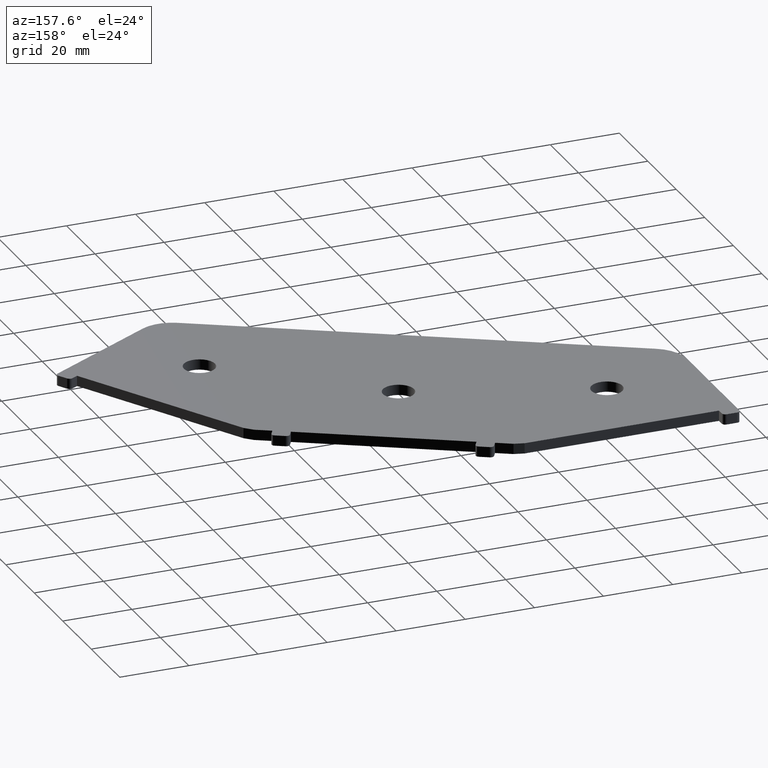
[diagram: clean part render]
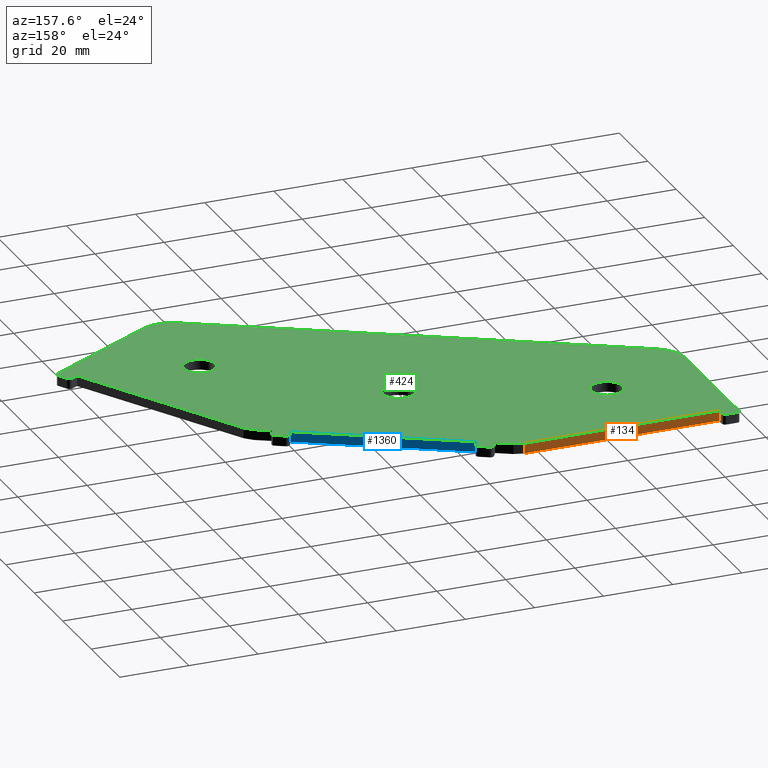
[diagram: same view with three faces highlighted in distinct colors, each labeled with its STEP entity id]
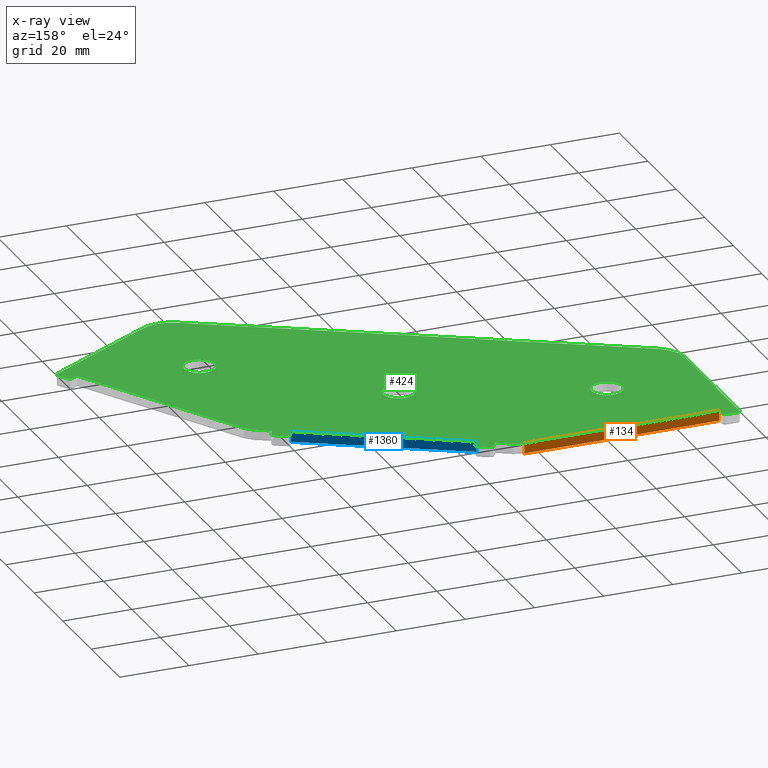
[diagram: x-ray of the same camera — body ghosted, the three highlighted faces saturated]
A machine part, auxiliary view with three faces highlighted in distinct colors.
The next image is the same camera in x-ray (body ghosted, the three faces saturated) — at least one of them is partly hidden behind the body in this view.
Their STEP definitions:

[orange] entity #134 — the highlighted planar face has unit normal (0, 1, -0).
#10 = LINE ( 'NONE', #332, #412 ) ;
#87 = EDGE_CURVE ( 'NONE', #1428, #1356, #1435, .T. ) ;
#91 = DIRECTION ( 'NONE',  ( -1.000000000000000000, 0.000000000000000000, 0.000000000000000000 ) ) ;
#103 = CARTESIAN_POINT ( 'NONE',  ( 586.2509217650526807, 1091.305264068951146, 1257.499999999999545 ) ) ;
#113 = DIRECTION ( 'NONE',  ( -1.000000000000000000, -0.000000000000000000, 0.000000000000000000 ) ) ;
#134 = ADVANCED_FACE ( 'NONE', ( #649 ), #551, .T. ) ;
#156 = EDGE_CURVE ( 'NONE', #1356, #811, #10, .T. ) ;
#278 = CARTESIAN_POINT ( 'NONE',  ( 586.2509217650526807, 1091.305264068951146, 1257.499999999999545 ) ) ;
#332 = CARTESIAN_POINT ( 'NONE',  ( 530.0000000000000000, 1091.305264068951146, 1257.499999999999545 ) ) ;
#336 = CARTESIAN_POINT ( 'NONE',  ( 586.2509217650526807, 1091.305264068951146, 1260.499999999999545 ) ) ;
#375 = CARTESIAN_POINT ( 'NONE',  ( 530.0000000000000000, 1091.305264068951146, 1260.499999999999545 ) ) ;
#412 = VECTOR ( 'NONE', #763, 1000.000000000000000 ) ;
#452 = CARTESIAN_POINT ( 'NONE',  ( 586.2509217650526807, 1091.305264068951146, 1257.499999999999545 ) ) ;
#505 = VECTOR ( 'NONE', #91, 1000.000000000000000 ) ;
#533 = EDGE_CURVE ( 'NONE', #1428, #809, #1342, .T. ) ;
#540 = CARTESIAN_POINT ( 'NONE',  ( 0.000000000000000000, 1091.305264068951146, 1260.499999999999545 ) ) ;
#551 = PLANE ( 'NONE',  #951 ) ;
#570 = VECTOR ( 'NONE', #765, 1000.000000000000000 ) ;
#649 = FACE_OUTER_BOUND ( 'NONE', #667, .T. ) ;
#667 = EDGE_LOOP ( 'NONE', ( #1128, #1287, #949, #784 ) ) ;
#735 = LINE ( 'NONE', #103, #505 ) ;
#755 = DIRECTION ( 'NONE',  ( 0.000000000000000000, 1.000000000000000000, -0.000000000000000000 ) ) ;
#763 = DIRECTION ( 'NONE',  ( -0.000000000000000000, -0.000000000000000000, -1.000000000000000000 ) ) ;
#765 = DIRECTION ( 'NONE',  ( -0.000000000000000000, -0.000000000000000000, -1.000000000000000000 ) ) ;
#777 = DIRECTION ( 'NONE',  ( -1.000000000000000000, 0.000000000000000000, 0.000000000000000000 ) ) ;
#784 = ORIENTED_EDGE ( 'NONE', *, *, #952, .T. ) ;
#809 = VERTEX_POINT ( 'NONE', #278 ) ;
#811 = VERTEX_POINT ( 'NONE', #1397 ) ;
#949 = ORIENTED_EDGE ( 'NONE', *, *, #533, .T. ) ;
#951 = AXIS2_PLACEMENT_3D ( 'NONE', #452, #755, #777 ) ;
#952 = EDGE_CURVE ( 'NONE', #809, #811, #735, .T. ) ;
#1010 = CARTESIAN_POINT ( 'NONE',  ( 586.2509217650526807, 1091.305264068951146, 1257.499999999999545 ) ) ;
#1128 = ORIENTED_EDGE ( 'NONE', *, *, #156, .F. ) ;
#1287 = ORIENTED_EDGE ( 'NONE', *, *, #87, .F. ) ;
#1292 = VECTOR ( 'NONE', #113, 1000.000000000000000 ) ;
#1342 = LINE ( 'NONE', #1010, #570 ) ;
#1356 = VERTEX_POINT ( 'NONE', #375 ) ;
#1397 = CARTESIAN_POINT ( 'NONE',  ( 530.0000000000000000, 1091.305264068951146, 1257.499999999999545 ) ) ;
#1428 = VERTEX_POINT ( 'NONE', #336 ) ;
#1435 = LINE ( 'NONE', #540, #1292 ) ;

[blue] entity #1360 — the highlighted planar face has unit normal (0.5, 0.866, -0).
#28 = ORIENTED_EDGE ( 'NONE', *, *, #337, .F. ) ;
#30 = DIRECTION ( 'NONE',  ( -0.000000000000000000, -0.000000000000000000, -1.000000000000000000 ) ) ;
#64 = VECTOR ( 'NONE', #664, 1000.000000000000000 ) ;
#146 = EDGE_CURVE ( 'NONE', #786, #277, #325, .T. ) ;
#150 = EDGE_LOOP ( 'NONE', ( #28, #989, #995, #364 ) ) ;
#152 = LINE ( 'NONE', #1245, #1068 ) ;
#193 = PLANE ( 'NONE',  #710 ) ;
#202 = DIRECTION ( 'NONE',  ( 0.5000000000000001110, 0.8660254037844385966, -0.000000000000000000 ) ) ;
#267 = CARTESIAN_POINT ( 'NONE',  ( 641.1910459962641653, 1060.482144026918149, 1257.499999999999545 ) ) ;
#277 = VERTEX_POINT ( 'NONE', #1083 ) ;
#287 = EDGE_CURVE ( 'NONE', #796, #530, #985, .T. ) ;
#306 = FACE_OUTER_BOUND ( 'NONE', #150, .T. ) ;
#325 = LINE ( 'NONE', #1201, #1246 ) ;
#329 = EDGE_CURVE ( 'NONE', #786, #796, #1142, .T. ) ;
#337 = EDGE_CURVE ( 'NONE', #277, #530, #152, .T. ) ;
#364 = ORIENTED_EDGE ( 'NONE', *, *, #287, .T. ) ;
#530 = VERTEX_POINT ( 'NONE', #566 ) ;
#566 = CARTESIAN_POINT ( 'NONE',  ( 597.8089532817642748, 1085.528806933643637, 1257.499999999999545 ) ) ;
#664 = DIRECTION ( 'NONE',  ( -0.8660254037844385966, 0.5000000000000001110, 0.000000000000000000 ) ) ;
#710 = AXIS2_PLACEMENT_3D ( 'NONE', #803, #202, #1205 ) ;
#786 = VERTEX_POINT ( 'NONE', #1387 ) ;
#796 = VERTEX_POINT ( 'NONE', #1392 ) ;
#803 = CARTESIAN_POINT ( 'NONE',  ( 649.8513000341085899, 1055.482144026917695, 1257.499999999999545 ) ) ;
#883 = CARTESIAN_POINT ( 'NONE',  ( 649.8513000341085899, 1055.482144026917695, 1257.499999999999545 ) ) ;
#904 = DIRECTION ( 'NONE',  ( -0.000000000000000000, -0.000000000000000000, -1.000000000000000000 ) ) ;
#967 = DIRECTION ( 'NONE',  ( -0.8660254037844385966, 0.5000000000000001110, 0.000000000000000000 ) ) ;
#985 = LINE ( 'NONE', #883, #64 ) ;
#989 = ORIENTED_EDGE ( 'NONE', *, *, #146, .F. ) ;
#995 = ORIENTED_EDGE ( 'NONE', *, *, #329, .T. ) ;
#1068 = VECTOR ( 'NONE', #904, 1000.000000000000000 ) ;
#1083 = CARTESIAN_POINT ( 'NONE',  ( 597.8089532817642748, 1085.528806933643637, 1260.499999999999545 ) ) ;
#1142 = LINE ( 'NONE', #267, #1145 ) ;
#1145 = VECTOR ( 'NONE', #30, 1000.000000000000000 ) ;
#1201 = CARTESIAN_POINT ( 'NONE',  ( 649.8513000341085899, 1055.482144026917695, 1260.499999999999545 ) ) ;
#1205 = DIRECTION ( 'NONE',  ( -0.8660254037844385966, 0.5000000000000001110, 0.000000000000000000 ) ) ;
#1245 = CARTESIAN_POINT ( 'NONE',  ( 597.8089532817642748, 1085.528806933643637, 1257.499999999999545 ) ) ;
#1246 = VECTOR ( 'NONE', #967, 1000.000000000000000 ) ;
#1360 = ADVANCED_FACE ( 'NONE', ( #306 ), #193, .T. ) ;
#1387 = CARTESIAN_POINT ( 'NONE',  ( 641.1910459962641653, 1060.482144026918149, 1260.499999999999545 ) ) ;
#1392 = CARTESIAN_POINT ( 'NONE',  ( 641.1910459962641653, 1060.482144026918149, 1257.499999999999545 ) ) ;

[green] entity #424 — the highlighted planar face has unit normal (0, 0, 1).
#2 = LINE ( 'NONE', #1209, #541 ) ;
#4 = DIRECTION ( 'NONE',  ( 1.000000000000000000, 0.000000000000000000, 0.000000000000000000 ) ) ;
#11 = ORIENTED_EDGE ( 'NONE', *, *, #751, .T. ) ;
#12 = DIRECTION ( 'NONE',  ( 1.000000000000000000, 0.000000000000000000, 0.000000000000000000 ) ) ;
#13 = ORIENTED_EDGE ( 'NONE', *, *, #1149, .F. ) ;
#16 = CARTESIAN_POINT ( 'NONE',  ( 529.0000000000000000, 1094.305264068950919, 1260.499999999999545 ) ) ;
#18 = ORIENTED_EDGE ( 'NONE', *, *, #807, .F. ) ;
#20 = DIRECTION ( 'NONE',  ( -1.000000000000000000, 0.000000000000000000, 0.000000000000000000 ) ) ;
#21 = VERTEX_POINT ( 'NONE', #560 ) ;
#32 = LINE ( 'NONE', #1024, #1391 ) ;
#33 = VERTEX_POINT ( 'NONE', #241 ) ;
#34 = ORIENTED_EDGE ( 'NONE', *, *, #459, .T. ) ;
#40 = DIRECTION ( 'NONE',  ( 0.000000000000000000, -1.000000000000000000, -0.000000000000000000 ) ) ;
#41 = AXIS2_PLACEMENT_3D ( 'NONE', #757, #994, #12 ) ;
#45 = VERTEX_POINT ( 'NONE', #567 ) ;
#47 = EDGE_CURVE ( 'NONE', #1335, #695, #368, .T. ) ;
#51 = ORIENTED_EDGE ( 'NONE', *, *, #1311, .F. ) ;
#53 = ORIENTED_EDGE ( 'NONE', *, *, #87, .T. ) ;
#61 = CARTESIAN_POINT ( 'NONE',  ( 594.4788262628419488, 1089.760857741212249, 1260.499999999999545 ) ) ;
#62 = VERTEX_POINT ( 'NONE', #908 ) ;
#72 = EDGE_CURVE ( 'NONE', #438, #1109, #343, .T. ) ;
#82 = CIRCLE ( 'NONE', #1314, 1.000000000000000888 ) ;
#87 = EDGE_CURVE ( 'NONE', #1428, #1356, #1435, .T. ) ;
#93 = DIRECTION ( 'NONE',  ( -0.5000000000000001110, -0.8660254037844384856, 0.000000000000000000 ) ) ;
#96 = EDGE_CURVE ( 'NONE', #171, #494, #370, .T. ) ;
#100 = FACE_BOUND ( 'NONE', #1004, .T. ) ;
#102 = EDGE_CURVE ( 'NONE', #1109, #151, #1220, .T. ) ;
#105 = EDGE_CURVE ( 'NONE', #522, #33, #870, .T. ) ;
#106 = CARTESIAN_POINT ( 'NONE',  ( 642.8858955936145776, 1011.305264102386786, 1260.499999999999545 ) ) ;
#107 = DIRECTION ( 'NONE',  ( -0.000000000000000000, -0.000000000000000000, -1.000000000000000000 ) ) ;
#109 = CIRCLE ( 'NONE', #110, 1.000000000000000888 ) ;
#110 = AXIS2_PLACEMENT_3D ( 'NONE', #509, #1046, #1163 ) ;
#112 = CARTESIAN_POINT ( 'NONE',  ( 595.8448516666264823, 1090.126883144996782, 1260.499999999999545 ) ) ;
#113 = DIRECTION ( 'NONE',  ( -1.000000000000000000, -0.000000000000000000, 0.000000000000000000 ) ) ;
#114 = ORIENTED_EDGE ( 'NONE', *, *, #1275, .T. ) ;
#119 = CARTESIAN_POINT ( 'NONE',  ( 649.8513000341085899, 1055.482144026917695, 1260.499999999999545 ) ) ;
#120 = DIRECTION ( 'NONE',  ( 1.000000000000000000, 0.000000000000000000, 0.000000000000000000 ) ) ;
#122 = DIRECTION ( 'NONE',  ( -0.000000000000000000, -0.000000000000000000, -1.000000000000000000 ) ) ;
#136 = CIRCLE ( 'NONE', #520, 4.499999993611059068 ) ;
#146 = EDGE_CURVE ( 'NONE', #786, #277, #325, .T. ) ;
#151 = VERTEX_POINT ( 'NONE', #213 ) ;
#159 = ORIENTED_EDGE ( 'NONE', *, *, #1125, .T. ) ;
#168 = EDGE_CURVE ( 'NONE', #62, #1009, #2, .T. ) ;
#171 = VERTEX_POINT ( 'NONE', #445 ) ;
#174 = EDGE_CURVE ( 'NONE', #930, #1327, #557, .T. ) ;
#177 = EDGE_CURVE ( 'NONE', #298, #33, #682, .T. ) ;
#180 = VECTOR ( 'NONE', #307, 1000.000000000000000 ) ;
#185 = CARTESIAN_POINT ( 'NONE',  ( 0.000000000000000000, 1094.305264068950919, 1260.499999999999545 ) ) ;
#188 = CARTESIAN_POINT ( 'NONE',  ( 645.5211730151863776, 1057.982144026917922, 1260.499999999999545 ) ) ;
#197 = LINE ( 'NONE', #1074, #1091 ) ;
#199 = CARTESIAN_POINT ( 'NONE',  ( 526.0000000000000000, 1094.305264068950919, 1260.499999999999545 ) ) ;
#200 = CIRCLE ( 'NONE', #41, 4.499999993611059068 ) ;
#213 = CARTESIAN_POINT ( 'NONE',  ( 598.4429278779798551, 1088.626883144996782, 1260.499999999999545 ) ) ;
#218 = EDGE_CURVE ( 'NONE', #171, #440, #32, .T. ) ;
#227 = DIRECTION ( 'NONE',  ( -0.000000000000000000, -0.000000000000000000, -1.000000000000000000 ) ) ;
#230 = LINE ( 'NONE', #119, #802 ) ;
#234 = VERTEX_POINT ( 'NONE', #919 ) ;
#238 = DIRECTION ( 'NONE',  ( -0.8660254037844385966, 0.5000000000000001110, 0.000000000000000000 ) ) ;
#241 = CARTESIAN_POINT ( 'NONE',  ( 683.1961574715471670, 1005.280071044746933, 1260.499999999999545 ) ) ;
#244 = DIRECTION ( 'NONE',  ( -1.000000000000000000, 0.000000000000000000, 0.000000000000000000 ) ) ;
#246 = ORIENTED_EDGE ( 'NONE', *, *, #706, .F. ) ;
#249 = EDGE_LOOP ( 'NONE', ( #13, #961 ) ) ;
#253 = CIRCLE ( 'NONE', #1431, 1.000000000000000888 ) ;
#254 = DIRECTION ( 'NONE',  ( 0.000000000000000000, 0.000000000000000000, 1.000000000000000000 ) ) ;
#256 = CIRCLE ( 'NONE', #1278, 4.499999993611059068 ) ;
#264 = ORIENTED_EDGE ( 'NONE', *, *, #270, .F. ) ;
#268 = LINE ( 'NONE', #1067, #1369 ) ;
#270 = EDGE_CURVE ( 'NONE', #151, #234, #82, .T. ) ;
#277 = VERTEX_POINT ( 'NONE', #1083 ) ;
#279 = EDGE_CURVE ( 'NONE', #680, #440, #708, .T. ) ;
#280 = ORIENTED_EDGE ( 'NONE', *, *, #218, .T. ) ;
#283 = FACE_BOUND ( 'NONE', #1241, .T. ) ;
#290 = CARTESIAN_POINT ( 'NONE',  ( 529.0000000000000000, 1093.305264068951146, 1260.499999999999545 ) ) ;
#291 = CARTESIAN_POINT ( 'NONE',  ( 525.0000000000000000, 1050.200139638875044, 1260.499999999999545 ) ) ;
#295 = CIRCLE ( 'NONE', #569, 1.000000000000000888 ) ;
#296 = VECTOR ( 'NONE', #1051, 1000.000000000000114 ) ;
#298 = VERTEX_POINT ( 'NONE', #859 ) ;
#307 = DIRECTION ( 'NONE',  ( -0.9659258262890740854, 0.2588190451024992567, 0.000000000000000000 ) ) ;
#311 = CARTESIAN_POINT ( 'NONE',  ( 684.3301320677630883, 1001.315969429609254, 1260.499999999999545 ) ) ;
#312 = CARTESIAN_POINT ( 'NONE',  ( 525.0000000000000000, 1055.973642330771554, 1260.499999999999545 ) ) ;
#315 = CARTESIAN_POINT ( 'NONE',  ( 682.3301320677627473, 1004.780071044746705, 1260.499999999999545 ) ) ;
#316 = ORIENTED_EDGE ( 'NONE', *, *, #1301, .T. ) ;
#317 = AXIS2_PLACEMENT_3D ( 'NONE', #545, #107, #1130 ) ;
#318 = DIRECTION ( 'NONE',  ( -0.5000000000000001110, -0.8660254037844384856, 0.000000000000000000 ) ) ;
#323 = CARTESIAN_POINT ( 'NONE',  ( 597.9429278779797414, 1087.760857741212249, 1260.499999999999545 ) ) ;
#325 = LINE ( 'NONE', #1201, #1246 ) ;
#334 = DIRECTION ( 'NONE',  ( 1.000000000000000000, 0.000000000000000000, 0.000000000000000000 ) ) ;
#336 = CARTESIAN_POINT ( 'NONE',  ( 586.2509217650526807, 1091.305264068951146, 1260.499999999999545 ) ) ;
#339 = DIRECTION ( 'NONE',  ( 0.000000000000000000, -0.000000000000000000, -1.000000000000000000 ) ) ;
#343 = CIRCLE ( 'NONE', #317, 1.000000000000000888 ) ;
#345 = DIRECTION ( 'NONE',  ( 0.000000000000000000, 0.000000000000000000, 1.000000000000000000 ) ) ;
#352 = CARTESIAN_POINT ( 'NONE',  ( 645.6551476114017305, 1060.214194834486307, 1260.499999999999545 ) ) ;
#361 = VERTEX_POINT ( 'NONE', #1235 ) ;
#366 = VERTEX_POINT ( 'NONE', #696 ) ;
#368 = CIRCLE ( 'NONE', #655, 1.000000000000000888 ) ;
#370 = CIRCLE ( 'NONE', #1167, 1.000000000000000888 ) ;
#371 = EDGE_CURVE ( 'NONE', #522, #1335, #295, .T. ) ;
#375 = CARTESIAN_POINT ( 'NONE',  ( 530.0000000000000000, 1091.305264068951146, 1260.499999999999545 ) ) ;
#378 = VECTOR ( 'NONE', #1227, 1000.000000000000000 ) ;
#383 = CARTESIAN_POINT ( 'NONE',  ( 596.4788262628418352, 1093.224959356349927, 1260.499999999999545 ) ) ;
#388 = DIRECTION ( 'NONE',  ( -0.5000000000000001110, -0.8660254037844385966, 0.000000000000000000 ) ) ;
#405 = CARTESIAN_POINT ( 'NONE',  ( 643.0570714000484713, 1061.714194834486307, 1260.499999999999545 ) ) ;
#409 = CARTESIAN_POINT ( 'NONE',  ( 608.9999996252439587, 1047.024713385834275, 1260.499999999999545 ) ) ;
#410 = EDGE_CURVE ( 'NONE', #1327, #764, #658, .T. ) ;
#413 = CIRCLE ( 'NONE', #953, 10.00000000000000888 ) ;
#423 = ORIENTED_EDGE ( 'NONE', *, *, #146, .T. ) ;
#424 = ADVANCED_FACE ( 'NONE', ( #1279, #283, #100, #537 ), #829, .T. ) ;
#425 = DIRECTION ( 'NONE',  ( 0.000000000000000000, 0.000000000000000000, 1.000000000000000000 ) ) ;
#428 = DIRECTION ( 'NONE',  ( 0.8660254037844367092, -0.5000000000000034417, 0.000000000000000000 ) ) ;
#437 = CARTESIAN_POINT ( 'NONE',  ( 526.0000000000000000, 1093.305264068951146, 1260.499999999999545 ) ) ;
#438 = VERTEX_POINT ( 'NONE', #61 ) ;
#440 = VERTEX_POINT ( 'NONE', #312 ) ;
#442 = CARTESIAN_POINT ( 'NONE',  ( 649.8513000341085899, 1055.482144026917695, 1260.499999999999545 ) ) ;
#444 = LINE ( 'NONE', #776, #866 ) ;
#445 = CARTESIAN_POINT ( 'NONE',  ( 525.0000000000000000, 1093.305264068951146, 1260.499999999999545 ) ) ;
#450 = DIRECTION ( 'NONE',  ( -0.000000000000000000, -0.000000000000000000, -1.000000000000000000 ) ) ;
#453 = ORIENTED_EDGE ( 'NONE', *, *, #848, .F. ) ;
#459 = EDGE_CURVE ( 'NONE', #1333, #786, #1417, .T. ) ;
#462 = CARTESIAN_POINT ( 'NONE',  ( 647.0211730151862639, 1060.580220238270840, 1260.499999999999545 ) ) ;
#464 = DIRECTION ( 'NONE',  ( 0.000000000000000000, -0.000000000000000000, -1.000000000000000000 ) ) ;
#478 = CIRCLE ( 'NONE', #974, 4.499999993602288306 ) ;
#480 = CARTESIAN_POINT ( 'NONE',  ( 683.8301320677629747, 1002.181994833393674, 1260.499999999999545 ) ) ;
#484 = ORIENTED_EDGE ( 'NONE', *, *, #96, .F. ) ;
#486 = DIRECTION ( 'NONE',  ( 0.000000000000000000, 0.000000000000000000, 1.000000000000000000 ) ) ;
#491 = CARTESIAN_POINT ( 'NONE',  ( 684.8301320677629747, 1002.181994833393674, 1260.499999999999545 ) ) ;
#494 = VERTEX_POINT ( 'NONE', #199 ) ;
#500 = AXIS2_PLACEMENT_3D ( 'NONE', #524, #425, #1312 ) ;
#502 = VECTOR ( 'NONE', #857, 1000.000000000000114 ) ;
#507 = CIRCLE ( 'NONE', #595, 4.499999993602288306 ) ;
#509 = CARTESIAN_POINT ( 'NONE',  ( 597.9429278779797414, 1087.760857741212249, 1260.499999999999545 ) ) ;
#510 = EDGE_CURVE ( 'NONE', #906, #589, #136, .T. ) ;
#511 = DIRECTION ( 'NONE',  ( 1.000000000000000000, 0.000000000000000000, 0.000000000000000000 ) ) ;
#514 = ORIENTED_EDGE ( 'NONE', *, *, #510, .F. ) ;
#517 = EDGE_CURVE ( 'NONE', #1244, #21, #413, .T. ) ;
#520 = AXIS2_PLACEMENT_3D ( 'NONE', #780, #1334, #4 ) ;
#522 = VERTEX_POINT ( 'NONE', #889 ) ;
#524 = CARTESIAN_POINT ( 'NONE',  ( 0.000000000000000000, 0.000000000000000000, 1260.499999999999545 ) ) ;
#537 = FACE_BOUND ( 'NONE', #249, .T. ) ;
#540 = CARTESIAN_POINT ( 'NONE',  ( 0.000000000000000000, 1091.305264068951146, 1260.499999999999545 ) ) ;
#541 = VECTOR ( 'NONE', #238, 1000.000000000000000 ) ;
#542 = ORIENTED_EDGE ( 'NONE', *, *, #1198, .F. ) ;
#545 = CARTESIAN_POINT ( 'NONE',  ( 595.3448516666264823, 1089.260857741212476, 1260.499999999999545 ) ) ;
#549 = CARTESIAN_POINT ( 'NONE',  ( 589.1486992439198502, 1090.528806933643637, 1260.499999999999545 ) ) ;
#550 = CARTESIAN_POINT ( 'NONE',  ( 598.8089532817641611, 1087.260857741212476, 1260.499999999999545 ) ) ;
#554 = ORIENTED_EDGE ( 'NONE', *, *, #174, .F. ) ;
#556 = DIRECTION ( 'NONE',  ( 1.000000000000000000, 0.000000000000000000, 0.000000000000000000 ) ) ;
#557 = LINE ( 'NONE', #462, #1363 ) ;
#560 = CARTESIAN_POINT ( 'NONE',  ( 641.9999992780285538, 982.6501585605194578, 1260.499999999999545 ) ) ;
#567 = CARTESIAN_POINT ( 'NONE',  ( 651.9726203776482407, 1053.360823683378158, 1260.499999999999545 ) ) ;
#569 = AXIS2_PLACEMENT_3D ( 'NONE', #480, #792, #244 ) ;
#574 = DIRECTION ( 'NONE',  ( 1.000000000000000000, 0.000000000000000000, 0.000000000000000000 ) ) ;
#583 = EDGE_CURVE ( 'NONE', #589, #906, #200, .T. ) ;
#587 = ORIENTED_EDGE ( 'NONE', *, *, #1112, .T. ) ;
#589 = VERTEX_POINT ( 'NONE', #106 ) ;
#595 = AXIS2_PLACEMENT_3D ( 'NONE', #1339, #345, #905 ) ;
#599 = EDGE_LOOP ( 'NONE', ( #587, #1062, #707, #1195, #1361, #11, #1358, #856, #159, #698, #246, #1080, #554, #453, #34, #423, #51, #18, #264, #1401, #1368, #316, #1135, #1124, #53, #825, #1202, #1151, #484, #280, #1011, #114, #819 ) ) ;
#609 = DIRECTION ( 'NONE',  ( 1.000000000000000000, 0.000000000000000000, 0.000000000000000000 ) ) ;
#612 = CARTESIAN_POINT ( 'NONE',  ( 685.2942336829000851, 1007.646096448531694, 1260.499999999999545 ) ) ;
#619 = DIRECTION ( 'NONE',  ( -0.000000000000000000, -0.000000000000000000, -1.000000000000000000 ) ) ;
#633 = LINE ( 'NONE', #966, #1316 ) ;
#635 = VECTOR ( 'NONE', #925, 1000.000000000000000 ) ;
#643 = CARTESIAN_POINT ( 'NONE',  ( 530.0000000000000000, 1047.313388292927129, 1260.499999999999545 ) ) ;
#646 = DIRECTION ( 'NONE',  ( 1.000000000000000000, 0.000000000000000000, 0.000000000000000000 ) ) ;
#655 = AXIS2_PLACEMENT_3D ( 'NONE', #1204, #464, #20 ) ;
#656 = CARTESIAN_POINT ( 'NONE',  ( 646.6551476114017305, 1060.214194834486307, 1260.499999999999545 ) ) ;
#657 = DIRECTION ( 'NONE',  ( -0.7071067811865660024, 0.7071067811865291430, 0.000000000000000000 ) ) ;
#658 = CIRCLE ( 'NONE', #1190, 1.000000000000000888 ) ;
#666 = DIRECTION ( 'NONE',  ( -0.5000000000000951461, 0.8660254037843836405, 0.000000000000000000 ) ) ;
#680 = VERTEX_POINT ( 'NONE', #643 ) ;
#682 = CIRCLE ( 'NONE', #770, 1.000000000000000888 ) ;
#685 = EDGE_CURVE ( 'NONE', #1171, #929, #253, .T. ) ;
#695 = VERTEX_POINT ( 'NONE', #311 ) ;
#696 = CARTESIAN_POINT ( 'NONE',  ( 599.9999996380394123, 1047.024713385834275, 1260.499999999999545 ) ) ;
#698 = ORIENTED_EDGE ( 'NONE', *, *, #726, .F. ) ;
#706 = EDGE_CURVE ( 'NONE', #764, #1353, #725, .T. ) ;
#707 = ORIENTED_EDGE ( 'NONE', *, *, #371, .F. ) ;
#708 = CIRCLE ( 'NONE', #1116, 10.00000000000000888 ) ;
#720 = EDGE_CURVE ( 'NONE', #1396, #45, #837, .T. ) ;
#721 = LINE ( 'NONE', #612, #296 ) ;
#725 = CIRCLE ( 'NONE', #1119, 1.000000000000000888 ) ;
#726 = EDGE_CURVE ( 'NONE', #1353, #1344, #197, .T. ) ;
#751 = EDGE_CURVE ( 'NONE', #298, #1396, #721, .T. ) ;
#757 = CARTESIAN_POINT ( 'NONE',  ( 647.3858955872256047, 1011.305264102386786, 1260.499999999999545 ) ) ;
#764 = VERTEX_POINT ( 'NONE', #656 ) ;
#768 = EDGE_CURVE ( 'NONE', #1009, #1428, #1317, .T. ) ;
#769 = CARTESIAN_POINT ( 'NONE',  ( 646.9999992780285538, 979.7634072145713162, 1260.499999999999545 ) ) ;
#770 = AXIS2_PLACEMENT_3D ( 'NONE', #315, #339, #1106 ) ;
#776 = CARTESIAN_POINT ( 'NONE',  ( 651.9726203776482407, 1053.360823683378158, 1260.499999999999545 ) ) ;
#780 = CARTESIAN_POINT ( 'NONE',  ( 647.3858955872256047, 1011.305264102386786, 1260.499999999999545 ) ) ;
#782 = DIRECTION ( 'NONE',  ( -0.000000000000000000, -0.000000000000000000, -1.000000000000000000 ) ) ;
#786 = VERTEX_POINT ( 'NONE', #1387 ) ;
#789 = EDGE_CURVE ( 'NONE', #366, #1320, #478, .T. ) ;
#792 = DIRECTION ( 'NONE',  ( 0.000000000000000000, -0.000000000000000000, -1.000000000000000000 ) ) ;
#802 = VECTOR ( 'NONE', #1008, 1000.000000000000000 ) ;
#807 = EDGE_CURVE ( 'NONE', #234, #1120, #109, .T. ) ;
#808 = DIRECTION ( 'NONE',  ( 1.000000000000000000, 0.000000000000000000, -0.000000000000000000 ) ) ;
#819 = ORIENTED_EDGE ( 'NONE', *, *, #517, .F. ) ;
#823 = CIRCLE ( 'NONE', #980, 1.000000000000000888 ) ;
#825 = ORIENTED_EDGE ( 'NONE', *, *, #959, .F. ) ;
#829 = PLANE ( 'NONE',  #500 ) ;
#832 = CARTESIAN_POINT ( 'NONE',  ( 604.4999996316416855, 1047.024713385834275, 1260.499999999999545 ) ) ;
#837 = LINE ( 'NONE', #1059, #502 ) ;
#839 = VECTOR ( 'NONE', #666, 1000.000000000000000 ) ;
#848 = EDGE_CURVE ( 'NONE', #1333, #930, #823, .T. ) ;
#851 = DIRECTION ( 'NONE',  ( 1.000000000000000000, 0.000000000000000000, 0.000000000000000000 ) ) ;
#856 = ORIENTED_EDGE ( 'NONE', *, *, #1076, .T. ) ;
#857 = DIRECTION ( 'NONE',  ( -0.5000000000000985878, 0.8660254037843816421, 0.000000000000000000 ) ) ;
#859 = CARTESIAN_POINT ( 'NONE',  ( 681.8301320677625199, 1005.646096448531239, 1260.499999999999545 ) ) ;
#866 = VECTOR ( 'NONE', #657, 999.9999999999998863 ) ;
#868 = CARTESIAN_POINT ( 'NONE',  ( 535.0000000000000000, 1055.973642330771554, 1260.499999999999545 ) ) ;
#870 = LINE ( 'NONE', #1228, #839 ) ;
#874 = CARTESIAN_POINT ( 'NONE',  ( 680.0980812601939078, 1004.646096448531125, 1260.499999999999545 ) ) ;
#877 = DIRECTION ( 'NONE',  ( 0.8660254037844367092, -0.5000000000000034417, 0.000000000000000000 ) ) ;
#889 = CARTESIAN_POINT ( 'NONE',  ( 684.6961574715472807, 1002.681994833393787, 1260.499999999999545 ) ) ;
#905 = DIRECTION ( 'NONE',  ( 1.000000000000000000, 0.000000000000000000, 0.000000000000000000 ) ) ;
#906 = VERTEX_POINT ( 'NONE', #1281 ) ;
#908 = CARTESIAN_POINT ( 'NONE',  ( 593.4788262628420625, 1088.028806933643637, 1260.499999999999545 ) ) ;
#918 = LINE ( 'NONE', #291, #635 ) ;
#919 = CARTESIAN_POINT ( 'NONE',  ( 598.9429278779797414, 1087.760857741212249, 1260.499999999999545 ) ) ;
#925 = DIRECTION ( 'NONE',  ( 0.8660254037844389297, -0.4999999999999995004, 0.000000000000000000 ) ) ;
#928 = DIRECTION ( 'NONE',  ( 1.000000000000000000, 0.000000000000000000, 0.000000000000000000 ) ) ;
#929 = VERTEX_POINT ( 'NONE', #1308 ) ;
#930 = VERTEX_POINT ( 'NONE', #1063 ) ;
#939 = VECTOR ( 'NONE', #808, 1000.000000000000000 ) ;
#947 = CARTESIAN_POINT ( 'NONE',  ( 646.1551476114018442, 1061.080220238270840, 1260.499999999999545 ) ) ;
#953 = AXIS2_PLACEMENT_3D ( 'NONE', #1328, #122, #334 ) ;
#959 = EDGE_CURVE ( 'NONE', #929, #1356, #633, .T. ) ;
#960 = CARTESIAN_POINT ( 'NONE',  ( 589.1486992439198502, 1090.528806933643637, 1260.499999999999545 ) ) ;
#961 = ORIENTED_EDGE ( 'NONE', *, *, #789, .F. ) ;
#962 = DIRECTION ( 'NONE',  ( -0.000000000000000000, -0.000000000000000000, -1.000000000000000000 ) ) ;
#966 = CARTESIAN_POINT ( 'NONE',  ( 530.0000000000000000, 0.000000000000000000, 1260.499999999999545 ) ) ;
#967 = DIRECTION ( 'NONE',  ( -0.8660254037844385966, 0.5000000000000001110, 0.000000000000000000 ) ) ;
#974 = AXIS2_PLACEMENT_3D ( 'NONE', #832, #486, #928 ) ;
#977 = DIRECTION ( 'NONE',  ( -0.000000000000000000, -0.000000000000000000, -1.000000000000000000 ) ) ;
#980 = AXIS2_PLACEMENT_3D ( 'NONE', #405, #1274, #609 ) ;
#987 = VERTEX_POINT ( 'NONE', #1200 ) ;
#994 = DIRECTION ( 'NONE',  ( 0.000000000000000000, 0.000000000000000000, 1.000000000000000000 ) ) ;
#1004 = EDGE_LOOP ( 'NONE', ( #542, #1175 ) ) ;
#1008 = DIRECTION ( 'NONE',  ( -0.8660254037844385966, 0.5000000000000001110, 0.000000000000000000 ) ) ;
#1009 = VERTEX_POINT ( 'NONE', #960 ) ;
#1011 = ORIENTED_EDGE ( 'NONE', *, *, #279, .F. ) ;
#1024 = CARTESIAN_POINT ( 'NONE',  ( 525.0000000000000000, 0.000000000000000000, 1260.499999999999545 ) ) ;
#1032 = AXIS2_PLACEMENT_3D ( 'NONE', #1208, #1247, #556 ) ;
#1035 = CARTESIAN_POINT ( 'NONE',  ( 642.1910459962639379, 1062.214194834486307, 1260.499999999999545 ) ) ;
#1046 = DIRECTION ( 'NONE',  ( -0.000000000000000000, -0.000000000000000000, -1.000000000000000000 ) ) ;
#1049 = VECTOR ( 'NONE', #428, 999.9999999999998863 ) ;
#1051 = DIRECTION ( 'NONE',  ( -0.8660254037843816421, -0.5000000000000985878, 0.000000000000000000 ) ) ;
#1059 = CARTESIAN_POINT ( 'NONE',  ( 682.5980812601943626, 1000.315969429609140, 1260.499999999999545 ) ) ;
#1062 = ORIENTED_EDGE ( 'NONE', *, *, #47, .F. ) ;
#1063 = CARTESIAN_POINT ( 'NONE',  ( 643.5570714000484713, 1062.580220238270840, 1260.499999999999545 ) ) ;
#1067 = CARTESIAN_POINT ( 'NONE',  ( 600.8089532817640475, 1090.724959356349927, 1260.499999999999545 ) ) ;
#1070 = VECTOR ( 'NONE', #388, 1000.000000000000000 ) ;
#1074 = CARTESIAN_POINT ( 'NONE',  ( 648.5211730151859228, 1063.178296449623758, 1260.499999999999545 ) ) ;
#1076 = EDGE_CURVE ( 'NONE', #45, #1380, #444, .T. ) ;
#1080 = ORIENTED_EDGE ( 'NONE', *, *, #410, .F. ) ;
#1081 = DIRECTION ( 'NONE',  ( 1.000000000000000000, 0.000000000000000000, 0.000000000000000000 ) ) ;
#1083 = CARTESIAN_POINT ( 'NONE',  ( 597.8089532817642748, 1085.528806933643637, 1260.499999999999545 ) ) ;
#1091 = VECTOR ( 'NONE', #93, 1000.000000000000227 ) ;
#1092 = LINE ( 'NONE', #769, #378 ) ;
#1093 = EDGE_CURVE ( 'NONE', #361, #987, #1413, .T. ) ;
#1106 = DIRECTION ( 'NONE',  ( -1.000000000000000000, 0.000000000000000000, 0.000000000000000000 ) ) ;
#1109 = VERTEX_POINT ( 'NONE', #112 ) ;
#1112 = EDGE_CURVE ( 'NONE', #1244, #695, #1092, .T. ) ;
#1116 = AXIS2_PLACEMENT_3D ( 'NONE', #868, #227, #1325 ) ;
#1119 = AXIS2_PLACEMENT_3D ( 'NONE', #1166, #962, #511 ) ;
#1120 = VERTEX_POINT ( 'NONE', #550 ) ;
#1124 = ORIENTED_EDGE ( 'NONE', *, *, #768, .T. ) ;
#1125 = EDGE_CURVE ( 'NONE', #1380, #1344, #230, .T. ) ;
#1130 = DIRECTION ( 'NONE',  ( 1.000000000000000000, 0.000000000000000000, 0.000000000000000000 ) ) ;
#1134 = DIRECTION ( 'NONE',  ( -0.5000000000000001110, -0.8660254037844385966, 0.000000000000000000 ) ) ;
#1135 = ORIENTED_EDGE ( 'NONE', *, *, #168, .T. ) ;
#1149 = EDGE_CURVE ( 'NONE', #1320, #366, #507, .T. ) ;
#1151 = ORIENTED_EDGE ( 'NONE', *, *, #1233, .F. ) ;
#1163 = DIRECTION ( 'NONE',  ( 1.000000000000000000, 0.000000000000000000, 0.000000000000000000 ) ) ;
#1166 = CARTESIAN_POINT ( 'NONE',  ( 645.6551476114017305, 1060.214194834486307, 1260.499999999999545 ) ) ;
#1167 = AXIS2_PLACEMENT_3D ( 'NONE', #437, #977, #120 ) ;
#1169 = CARTESIAN_POINT ( 'NONE',  ( 651.9999992780285538, 982.6501585605194578, 1260.499999999999545 ) ) ;
#1171 = VERTEX_POINT ( 'NONE', #16 ) ;
#1175 = ORIENTED_EDGE ( 'NONE', *, *, #1093, .F. ) ;
#1190 = AXIS2_PLACEMENT_3D ( 'NONE', #352, #782, #1081 ) ;
#1195 = ORIENTED_EDGE ( 'NONE', *, *, #105, .T. ) ;
#1196 = CARTESIAN_POINT ( 'NONE',  ( 644.1910459962637105, 1065.678296449623531, 1260.499999999999545 ) ) ;
#1198 = EDGE_CURVE ( 'NONE', #987, #361, #256, .T. ) ;
#1200 = CARTESIAN_POINT ( 'NONE',  ( 556.6231011452485973, 1066.305264068958422, 1260.499999999999545 ) ) ;
#1201 = CARTESIAN_POINT ( 'NONE',  ( 649.8513000341085899, 1055.482144026917695, 1260.499999999999545 ) ) ;
#1202 = ORIENTED_EDGE ( 'NONE', *, *, #685, .F. ) ;
#1204 = CARTESIAN_POINT ( 'NONE',  ( 683.8301320677629747, 1002.181994833393674, 1260.499999999999545 ) ) ;
#1208 = CARTESIAN_POINT ( 'NONE',  ( 552.1231011516375702, 1066.305264068958422, 1260.499999999999545 ) ) ;
#1209 = CARTESIAN_POINT ( 'NONE',  ( 649.8513000341085899, 1055.482144026917695, 1260.499999999999545 ) ) ;
#1220 = LINE ( 'NONE', #1340, #1049 ) ;
#1227 = DIRECTION ( 'NONE',  ( 0.8660254037844392627, 0.4999999999999989453, 0.000000000000000000 ) ) ;
#1228 = CARTESIAN_POINT ( 'NONE',  ( 682.6961574715469396, 1006.146096448531353, 1260.499999999999545 ) ) ;
#1233 = EDGE_CURVE ( 'NONE', #494, #1171, #1271, .T. ) ;
#1235 = CARTESIAN_POINT ( 'NONE',  ( 547.6231011580264294, 1066.305264068958422, 1260.499999999999545 ) ) ;
#1241 = EDGE_LOOP ( 'NONE', ( #514, #1303 ) ) ;
#1244 = VERTEX_POINT ( 'NONE', #1169 ) ;
#1246 = VECTOR ( 'NONE', #967, 1000.000000000000000 ) ;
#1247 = DIRECTION ( 'NONE',  ( 0.000000000000000000, 0.000000000000000000, 1.000000000000000000 ) ) ;
#1248 = VECTOR ( 'NONE', #318, 1000.000000000000227 ) ;
#1271 = LINE ( 'NONE', #185, #939 ) ;
#1274 = DIRECTION ( 'NONE',  ( -0.000000000000000000, -0.000000000000000000, -1.000000000000000000 ) ) ;
#1275 = EDGE_CURVE ( 'NONE', #680, #21, #918, .T. ) ;
#1278 = AXIS2_PLACEMENT_3D ( 'NONE', #1355, #254, #574 ) ;
#1279 = FACE_OUTER_BOUND ( 'NONE', #599, .T. ) ;
#1281 = CARTESIAN_POINT ( 'NONE',  ( 651.8858955808366318, 1011.305264102386786, 1260.499999999999545 ) ) ;
#1292 = VECTOR ( 'NONE', #113, 1000.000000000000000 ) ;
#1301 = EDGE_CURVE ( 'NONE', #438, #62, #1405, .T. ) ;
#1303 = ORIENTED_EDGE ( 'NONE', *, *, #583, .F. ) ;
#1308 = CARTESIAN_POINT ( 'NONE',  ( 530.0000000000000000, 1093.305264068951146, 1260.499999999999545 ) ) ;
#1311 = EDGE_CURVE ( 'NONE', #1120, #277, #268, .T. ) ;
#1312 = DIRECTION ( 'NONE',  ( 1.000000000000000000, 0.000000000000000000, -0.000000000000000000 ) ) ;
#1314 = AXIS2_PLACEMENT_3D ( 'NONE', #323, #450, #646 ) ;
#1316 = VECTOR ( 'NONE', #1426, 1000.000000000000000 ) ;
#1317 = LINE ( 'NONE', #549, #180 ) ;
#1320 = VERTEX_POINT ( 'NONE', #409 ) ;
#1325 = DIRECTION ( 'NONE',  ( 1.000000000000000000, 0.000000000000000000, 0.000000000000000000 ) ) ;
#1327 = VERTEX_POINT ( 'NONE', #947 ) ;
#1328 = CARTESIAN_POINT ( 'NONE',  ( 646.9999992780285538, 991.3104125983638824, 1260.499999999999545 ) ) ;
#1333 = VERTEX_POINT ( 'NONE', #1035 ) ;
#1334 = DIRECTION ( 'NONE',  ( 0.000000000000000000, 0.000000000000000000, 1.000000000000000000 ) ) ;
#1335 = VERTEX_POINT ( 'NONE', #491 ) ;
#1339 = CARTESIAN_POINT ( 'NONE',  ( 604.4999996316416855, 1047.024713385834275, 1260.499999999999545 ) ) ;
#1340 = CARTESIAN_POINT ( 'NONE',  ( 599.3089532817641611, 1088.126883144996782, 1260.499999999999545 ) ) ;
#1344 = VERTEX_POINT ( 'NONE', #188 ) ;
#1353 = VERTEX_POINT ( 'NONE', #1364 ) ;
#1355 = CARTESIAN_POINT ( 'NONE',  ( 552.1231011516375702, 1066.305264068958422, 1260.499999999999545 ) ) ;
#1356 = VERTEX_POINT ( 'NONE', #375 ) ;
#1358 = ORIENTED_EDGE ( 'NONE', *, *, #720, .T. ) ;
#1361 = ORIENTED_EDGE ( 'NONE', *, *, #177, .F. ) ;
#1363 = VECTOR ( 'NONE', #877, 999.9999999999998863 ) ;
#1364 = CARTESIAN_POINT ( 'NONE',  ( 646.5211730151861502, 1059.714194834486307, 1260.499999999999545 ) ) ;
#1368 = ORIENTED_EDGE ( 'NONE', *, *, #72, .F. ) ;
#1369 = VECTOR ( 'NONE', #1134, 1000.000000000000000 ) ;
#1380 = VERTEX_POINT ( 'NONE', #442 ) ;
#1387 = CARTESIAN_POINT ( 'NONE',  ( 641.1910459962641653, 1060.482144026918149, 1260.499999999999545 ) ) ;
#1391 = VECTOR ( 'NONE', #40, 1000.000000000000000 ) ;
#1396 = VERTEX_POINT ( 'NONE', #874 ) ;
#1401 = ORIENTED_EDGE ( 'NONE', *, *, #102, .F. ) ;
#1405 = LINE ( 'NONE', #383, #1070 ) ;
#1413 = CIRCLE ( 'NONE', #1032, 4.499999993611059068 ) ;
#1417 = LINE ( 'NONE', #1196, #1248 ) ;
#1426 = DIRECTION ( 'NONE',  ( 0.000000000000000000, -1.000000000000000000, -0.000000000000000000 ) ) ;
#1428 = VERTEX_POINT ( 'NONE', #336 ) ;
#1431 = AXIS2_PLACEMENT_3D ( 'NONE', #290, #619, #851 ) ;
#1435 = LINE ( 'NONE', #540, #1292 ) ;